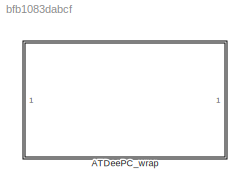
MODEL slx_bfb1083dabcf
KIND library
CONFIG AbsTol = auto
CONFIG EnableMultiTasking = off
CONFIG FixedStep = auto
CONFIG MaxStep = auto
CONFIG MinStep = auto
CONFIG RelTol = 1e-3
CONFIG SampleTimeConstraint = Unconstrained
CONFIG SolverName = VariableStepAuto
CONFIG StartTime = 0.0
CONFIG StopTime = 10.0
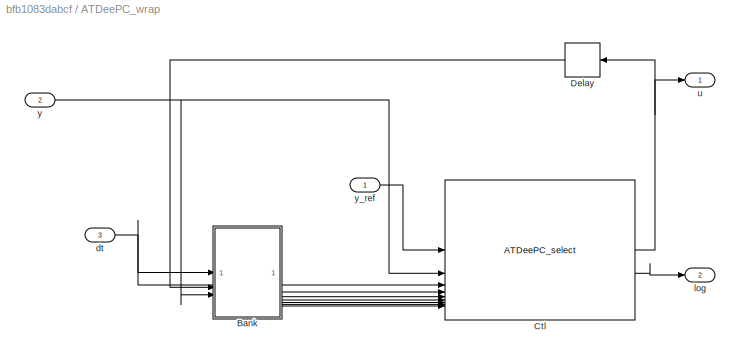
BLOCK [SubSystem] ATDeePC_wrap
  Tag = controller;
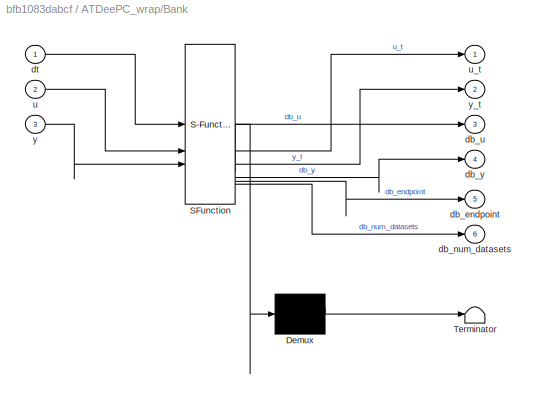
BLOCK [SubSystem] ATDeePC_wrap/Bank
  ErrorFcn = Stateflow.Translate.translate
  PermitHierarchicalResolution = ExplicitOnly
  SFBlockType = MATLAB Function
  TreatAsAtomicUnit = on
BLOCK [Demux] ATDeePC_wrap/Bank/ Demux 
  Outputs = 1
BLOCK [S-Function] ATDeePC_wrap/Bank/ SFunction 
  EnableBusSupport = off
  FunctionName = sf_sfun
  Parameters = data,db_params
  PortCounts = [3 7]
  SFcnIsStateOwnerBlock = off
  SFunctionDeploymentMode = off
  Tag = Stateflow S-Function 1
BLOCK [Terminator] ATDeePC_wrap/Bank/ Terminator 
BLOCK [Outport] ATDeePC_wrap/Bank/db_endpoint
  Port = 5
BLOCK [Outport] ATDeePC_wrap/Bank/db_num_datasets
  Port = 6
BLOCK [Outport] ATDeePC_wrap/Bank/db_u
  Port = 3
BLOCK [Outport] ATDeePC_wrap/Bank/db_y
  Port = 4
BLOCK [Inport] ATDeePC_wrap/Bank/dt
BLOCK [Inport] ATDeePC_wrap/Bank/u
  Port = 2
BLOCK [Outport] ATDeePC_wrap/Bank/u_t
BLOCK [Inport] ATDeePC_wrap/Bank/y
  Port = 3
BLOCK [Outport] ATDeePC_wrap/Bank/y_t
  Port = 2
BLOCK [Reference] ATDeePC_wrap/Ctl  REF=otter_controllers/ATDeePC_select  (lib defined in slx_587089fe2933)
  SourceBlock = otter_controllers/ATDeePC_select
  SourceType = SubSystem
BLOCK [Delay] ATDeePC_wrap/Delay
  DelayLength = 1
  InputPortMap = u0
  NameLocation = top
BLOCK [Inport] ATDeePC_wrap/dt
  Port = 3
BLOCK [Outport] ATDeePC_wrap/log
  Port = 2
BLOCK [Outport] ATDeePC_wrap/u
BLOCK [Inport] ATDeePC_wrap/y
  Port = 2
BLOCK [Inport] ATDeePC_wrap/y_ref
LINE ATDeePC_wrap/Bank:1 -> ATDeePC_wrap/Ctl:4
LINE ATDeePC_wrap/Bank:2 -> ATDeePC_wrap/Ctl:5
LINE ATDeePC_wrap/Bank:3 -> ATDeePC_wrap/Ctl:6
LINE ATDeePC_wrap/Bank:4 -> ATDeePC_wrap/Ctl:7
LINE ATDeePC_wrap/Bank:5 -> ATDeePC_wrap/Ctl:8
LINE ATDeePC_wrap/Bank:6 -> ATDeePC_wrap/Ctl:9
NET ATDeePC_wrap/Ctl:1 -> ATDeePC_wrap/Delay:1, ATDeePC_wrap/u:1
LINE ATDeePC_wrap/Ctl:2 -> ATDeePC_wrap/log:1
LINE ATDeePC_wrap/Delay:1 -> ATDeePC_wrap/Bank:2
NET ATDeePC_wrap/dt:1 -> ATDeePC_wrap/Bank:1, ATDeePC_wrap/Ctl:3
NET ATDeePC_wrap/y:1 -> ATDeePC_wrap/Bank:3, ATDeePC_wrap/Ctl:2
LINE ATDeePC_wrap/y_ref:1 -> ATDeePC_wrap/Ctl:1
note: NET lines group one-source signal fan-out (src -> all destinations, sorted); 1:1 wires keep LINE
CHART ATDeePC_wrap/Bank states=1 transitions=1
  STATE_LABEL 'eML_blk_kernel()'
  STATE_LABEL 'SCRIPT:\nfunction [u_t, y_t, db_u, db_y, db_endpoint, db_num_datasets] = fcn(dt, u, y, db_params, data)\n\n    persistent t u_traj y_traj last_changed_t db_u_p db_y_p db_endpoint_p db_num_datasets_p    \n\n    traj_len = data.T;\n    if isempty(t)\n        t = 0;\n        last_changed_t = 0;\n        db_num_datasets_p = db_params.num_datasets_in_bank;\n        db_u_p = zeros(db_params.dataset_bank_size, dat...<+1096ch>'
CHART  states=0 transitions=0
